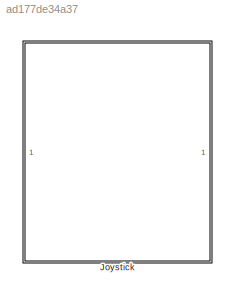
MODEL slx_ad177de34a37
KIND model
CONFIG AbsTol = auto
CONFIG FixedStep = auto
CONFIG MaxStep = auto
CONFIG MinStep = auto
CONFIG RelTol = 1e-3
CONFIG SampleTimeConstraint = Unconstrained
CONFIG Solver = ode45
CONFIG SolverMode = Auto
CONFIG SolverName = ode45
CONFIG StartTime = 0.0
CONFIG StopTime = inf
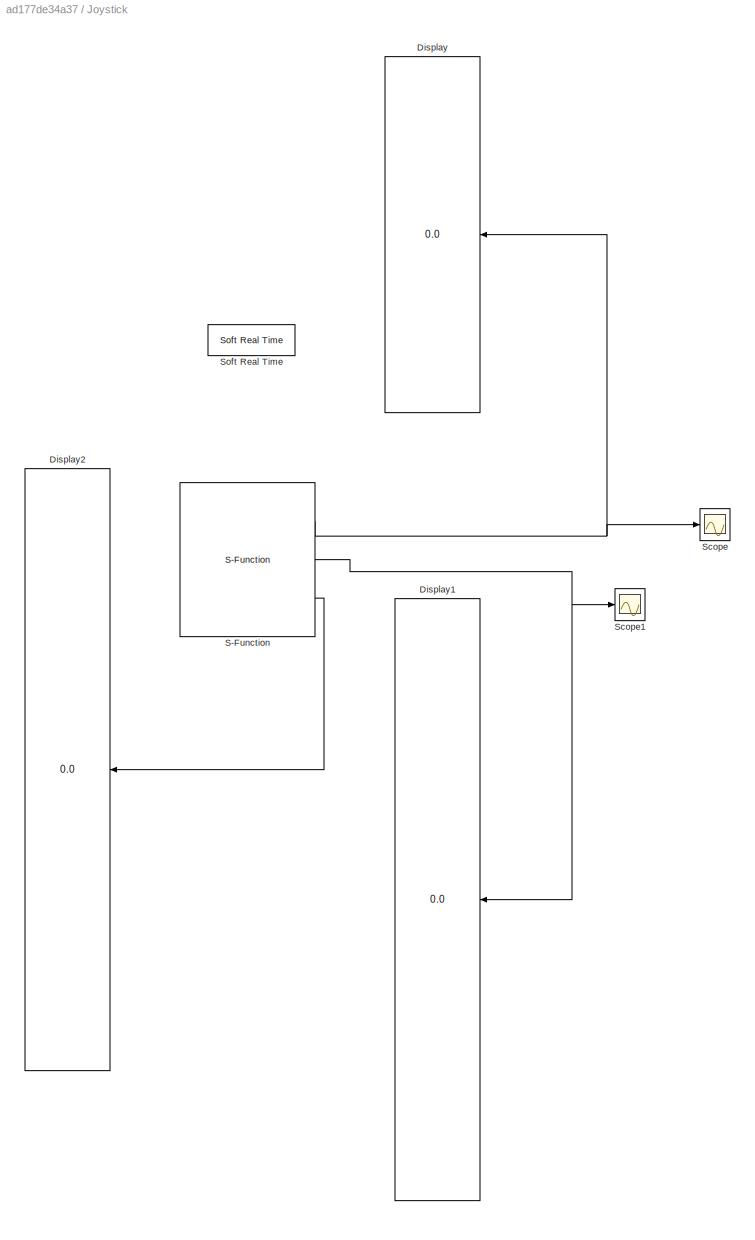
BLOCK [SubSystem] Joystick
  Ports = []
  RequestExecContextInheritance = off
BLOCK [Display] Joystick/Display
  Decimation = 1
  Ports = [1]
BLOCK [Display] Joystick/Display1
  Decimation = 1
  Ports = [1]
BLOCK [Display] Joystick/Display2
  Decimation = 1
  Ports = [1]
BLOCK [S-Function] Joystick/S-Function
  FunctionName = joyinput
  Parameters = joyid,adjustports,forcefeed
  Ports = [0, 3]
BLOCK [Scope] Joystick/Scope
  Floating = off
  LimitDataPoints = off
  NumInputPorts = 1
  Ports = [1]
  TimeRange = 100
  YMax = 1
  YMin = -1
BLOCK [Scope] Joystick/Scope1
  Floating = off
  LimitDataPoints = off
  NumInputPorts = 1
  Ports = [1]
  SaveName = ScopeData1
  TimeRange = 100
BLOCK [Reference] Joystick/Soft Real Time  REF=utility/Soft Real Time  (lib defined in slx_8818c3a16fdf)
  Ports = []
  SourceBlock = utility/Soft Real Time
  x = 1
NET Joystick/S-Function:1 -> Joystick/Display:1, Joystick/Scope:1
NET Joystick/S-Function:2 -> Joystick/Display1:1, Joystick/Scope1:1
LINE Joystick/S-Function:3 -> Joystick/Display2:1
note: NET lines group one-source signal fan-out (src -> all destinations, sorted); 1:1 wires keep LINE
